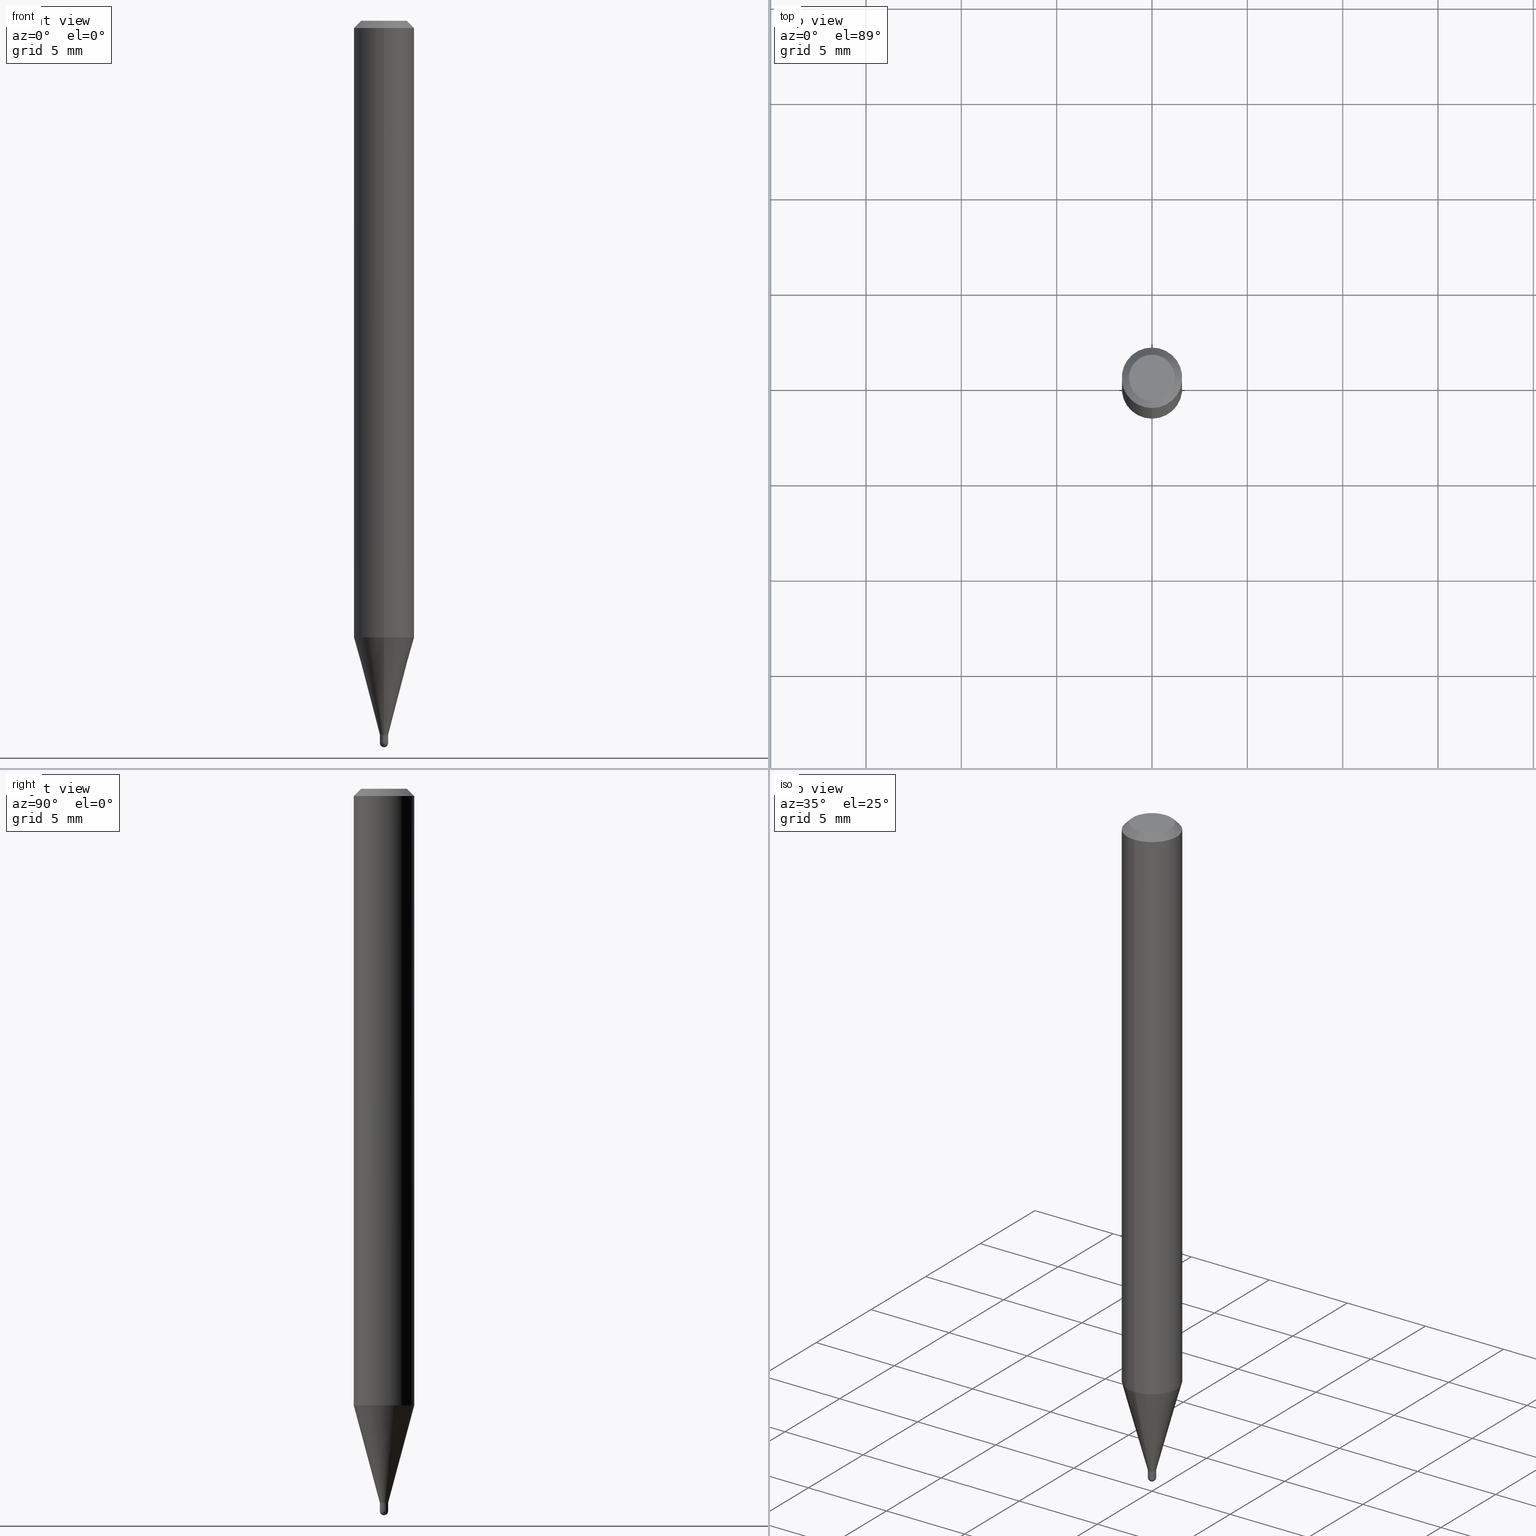
[diagram: canonical four-view strip — front | top / right | iso, engineering-drawing reading convention]
A machine part, canonical four-view strip (front | top / right | iso — engineering-drawing reading convention). The complete STEP part file that produces these views, byte-faithful:
ISO-10303-21;
HEADER;
FILE_DESCRIPTION (( 'STEP AP203' ),
    '1' );
FILE_NAME ('04329.STEP',
    '2024-03-08T18:39:42',
    ( '' ),
    ( '' ),
    'SwSTEP 2.0',
    'SolidWorks 2023',
    '' );
FILE_SCHEMA (( 'CONFIG_CONTROL_DESIGN' ));
ENDSEC;

DATA;
#1 = ORIENTED_EDGE ( 'NONE', *, *, #239, .T. ) ;
#2 = VERTEX_POINT ( 'NONE', #148 ) ;
#3 = AXIS2_PLACEMENT_3D ( 'NONE', #486, #332, #420 ) ;
#4 = EDGE_CURVE ( 'NONE', #141, #146, #386, .T. ) ;
#5 = ORIENTED_EDGE ( 'NONE', *, *, #302, .T. ) ;
#6 = COORDINATED_UNIVERSAL_TIME_OFFSET ( 5, 0, .BEHIND. ) ;
#7 = CARTESIAN_POINT ( 'NONE',  ( 3.605859241911730090E-29, -5.148167055584161688E-15, -1.474500000000000144 ) ) ;
#8 = VERTEX_POINT ( 'NONE', #30 ) ;
#9 = AXIS2_PLACEMENT_3D ( 'NONE', #336, #100, #499 ) ;
#10 = SECURITY_CLASSIFICATION ( '', '', #47 ) ;
#11 = APPROVAL_ROLE ( '' ) ;
#12 = CARTESIAN_POINT ( 'NONE',  ( 3.668218964304929807E-31, -5.237199446169058048E-17, -0.01500000000000006710 ) ) ;
#13 = ORIENTED_EDGE ( 'NONE', *, *, #500, .T. ) ;
#14 = DATE_AND_TIME ( #455, #452 ) ;
#15 = ORIENTED_EDGE ( 'NONE', *, *, #435, .F. ) ;
#16 = DIRECTION ( 'NONE',  ( -2.445468806185136597E-29, 3.491481338843145583E-15, 1.000000000000000000 ) ) ;
#17 = ORIENTED_EDGE ( 'NONE', *, *, #38, .T. ) ;
#18 = SHAPE_DEFINITION_REPRESENTATION ( #416, #138 ) ;
#19 = AXIS2_PLACEMENT_3D ( 'NONE', #472, #112, #512 ) ;
#20 = VECTOR ( 'NONE', #301, 39.37007874015748854 ) ;
#21 = CARTESIAN_POINT ( 'NONE',  ( -5.586370142145406992E-17, -0.008000000000005148826, -1.474500000000000366 ) ) ;
#22 = ORIENTED_EDGE ( 'NONE', *, *, #470, .T. ) ;
#23 = DIRECTION ( 'NONE',  ( -6.982962677686266711E-15, -1.000000000000000000, 0.000000000000000000 ) ) ;
#24 = CARTESIAN_POINT ( 'NONE',  ( -4.364351673553916201E-16, -0.06250000000000000000, 2.182166435903764727E-16 ) ) ;
#25 = CARTESIAN_POINT ( 'NONE',  ( 4.440892098500625669E-16, 0.06250000000000000000, -2.182166435903764727E-16 ) ) ;
#26 = AXIS2_PLACEMENT_3D ( 'NONE', #338, #258, #347 ) ;
#27 = LINE ( 'NONE', #143, #20 ) ;
#28 = DIRECTION ( 'NONE',  ( -2.445479309536609373E-29, 3.491466297446023562E-15, 1.000000000000000000 ) ) ;
#29 = DIRECTION ( 'NONE',  ( 7.105427357601000281E-15, 1.000000000000000000, 0.000000000000000000 ) ) ;
#30 = CARTESIAN_POINT ( 'NONE',  ( -4.364351673553605587E-16, -0.06250000000000445477, -1.272969256391287551 ) ) ;
#31 = CARTESIAN_POINT ( 'NONE',  ( 3.605859241911730090E-29, -5.148167055584161688E-15, -1.474500000000000144 ) ) ;
#32 = CC_DESIGN_PERSON_AND_ORGANIZATION_ASSIGNMENT ( #246, #173, ( #59 ) ) ;
#33 = ORIENTED_EDGE ( 'NONE', *, *, #38, .F. ) ;
#34 = CARTESIAN_POINT ( 'NONE',  ( 3.113019978181097375E-29, -4.444529256375107421E-15, -1.272969256391287773 ) ) ;
#35 = AXIS2_PLACEMENT_3D ( 'NONE', #351, #133, #422 ) ;
#36 = APPLICATION_CONTEXT ( 'configuration controlled 3d designs of mechanical parts and assemblies' ) ;
#37 = ORIENTED_EDGE ( 'NONE', *, *, #296, .T. ) ;
#38 = EDGE_CURVE ( 'NONE', #488, #2, #497, .T. ) ;
#39 = DIRECTION ( 'NONE',  ( -6.982962677686265922E-15, -1.000000000000000000, 3.491466297446023562E-15 ) ) ;
#40 =( LENGTH_UNIT ( ) NAMED_UNIT ( * ) SI_UNIT ( $, .METRE. ) );
#41 = ADVANCED_FACE ( 'NONE', ( #237 ), #505, .T. ) ;
#42 = DIRECTION ( 'NONE',  ( -2.445479309536609093E-29, 3.491466297446023562E-15, 1.000000000000000000 ) ) ;
#43 = CIRCLE ( 'NONE', #26, 0.008500000000000000611 ) ;
#44 = EDGE_LOOP ( 'NONE', ( #197, #359, #242, #63 ) ) ;
#45 = AXIS2_PLACEMENT_3D ( 'NONE', #95, #259, #97 ) ;
#46 = ADVANCED_FACE ( 'NONE', ( #73 ), #353, .T. ) ;
#47 = SECURITY_CLASSIFICATION_LEVEL ( 'unclassified' ) ;
#48 = CARTESIAN_POINT ( 'NONE',  ( 0.000000000000000000, 0.000000000000000000, 0.000000000000000000 ) ) ;
#49 = AXIS2_PLACEMENT_3D ( 'NONE', #7, #200, #161 ) ;
#50 = VERTEX_POINT ( 'NONE', #227 ) ;
#51 = APPROVAL_DATE_TIME ( #14, #274 ) ;
#52 = ORIENTED_EDGE ( 'NONE', *, *, #296, .F. ) ;
#53 = DATE_TIME_ROLE ( 'creation_date' ) ;
#54 = ADVANCED_FACE ( 'NONE', ( #312 ), #438, .F. ) ;
#55 = DIRECTION ( 'NONE',  ( -2.445479309536609093E-29, 3.491466297446023562E-15, 1.000000000000000000 ) ) ;
#56 = CARTESIAN_POINT ( 'NONE',  ( 3.605859241911730650E-29, -5.148167055584163266E-15, -1.474500000000000366 ) ) ;
#57 = AXIS2_PLACEMENT_3D ( 'NONE', #106, #265, #136 ) ;
#58 = AXIS2_PLACEMENT_3D ( 'NONE', #379, #16, #202 ) ;
#59 = PRODUCT_DEFINITION_FORMATION_WITH_SPECIFIED_SOURCE ( 'ANY', '', #285, .NOT_KNOWN. ) ;
#60 = DIRECTION ( 'NONE',  ( -6.982962677686266711E-15, -1.000000000000000000, 0.000000000000000000 ) ) ;
#61 = CARTESIAN_POINT ( 'NONE',  ( 3.647416724425131194E-29, -5.207544416884551827E-15, -1.491500000000000270 ) ) ;
#62 = DIRECTION ( 'NONE',  ( -6.982962677686265922E-15, -1.000000000000000000, 0.000000000000000000 ) ) ;
#63 = ORIENTED_EDGE ( 'NONE', *, *, #4, .F. ) ;
#64 = CARTESIAN_POINT ( 'NONE',  ( 6.039613253964597870E-17, 0.008499999999995049710, -1.474500000000000144 ) ) ;
#65 = ORIENTED_EDGE ( 'NONE', *, *, #454, .T. ) ;
#66 = CIRCLE ( 'NONE', #3, 0.008000000000000000167 ) ;
#67 = CARTESIAN_POINT ( 'NONE',  ( 3.604636502256962447E-29, -5.146421322435439499E-15, -1.474000000000000199 ) ) ;
#68 = CIRCLE ( 'NONE', #264, 0.008499999999999964181 ) ;
#69 = ADVANCED_FACE ( 'NONE', ( #429 ), #478, .T. ) ;
#70 = LINE ( 'NONE', #391, #130 ) ;
#71 = DIRECTION ( 'NONE',  ( -2.445479309536609093E-29, 3.491466297446023562E-15, 1.000000000000000000 ) ) ;
#72 = FACE_OUTER_BOUND ( 'NONE', #318, .T. ) ;
#73 = FACE_OUTER_BOUND ( 'NONE', #120, .T. ) ;
#74 = CARTESIAN_POINT ( 'NONE',  ( 3.646689833079329078E-29, -5.208585366663827303E-15, -1.491500000000000270 ) ) ;
#75 = FACE_OUTER_BOUND ( 'NONE', #110, .T. ) ;
#76 = ORIENTED_EDGE ( 'NONE', *, *, #335, .T. ) ;
#77 = ORIENTED_EDGE ( 'NONE', *, *, #367, .T. ) ;
#78 = PERSON_AND_ORGANIZATION_ROLE ( 'design_owner' ) ;
#79 = EDGE_CURVE ( 'NONE', #387, #50, #321, .T. ) ;
#80 = VECTOR ( 'NONE', #418, 39.37007874015748143 ) ;
#81 = ADVANCED_FACE ( 'NONE', ( #365 ), #300, .T. ) ;
#82 = ORIENTED_EDGE ( 'NONE', *, *, #236, .F. ) ;
#83 = EDGE_LOOP ( 'NONE', ( #434, #159, #253, #52 ) ) ;
#84 = CALENDAR_DATE ( 2024, 8, 3 ) ;
#85 = AXIS2_PLACEMENT_3D ( 'NONE', #92, #425, #23 ) ;
#86 = CONICAL_SURFACE ( 'NONE', #287, 0.008500000000000198369, 0.2617993877991573459 ) ;
#87 = APPROVAL_ROLE ( '' ) ;
#88 = APPROVAL ( #450, 'UNSPECIFIED' ) ;
#89 = DIRECTION ( 'NONE',  ( 6.982962677686265922E-15, 1.000000000000000000, -3.483106191921935554E-15 ) ) ;
#90 = FACE_OUTER_BOUND ( 'NONE', #83, .T. ) ;
#91 = EDGE_CURVE ( 'NONE', #387, #141, #70, .T. ) ;
#92 = CARTESIAN_POINT ( 'NONE',  ( 3.605859241911730650E-29, -5.148167055584163266E-15, -1.474500000000000366 ) ) ;
#93 = CARTESIAN_POINT ( 'NONE',  ( 3.647416724425131194E-29, -5.207544416884551827E-15, -1.491500000000000270 ) ) ;
#94 = FACE_OUTER_BOUND ( 'NONE', #479, .T. ) ;
#95 = CARTESIAN_POINT ( 'NONE',  ( 0.000000000000000000, 0.000000000000000000, 0.000000000000000000 ) ) ;
#96 = DIRECTION ( 'NONE',  ( -6.982962677686265922E-15, -1.000000000000000000, 3.491466297446023562E-15 ) ) ;
#97 = DIRECTION ( 'NONE',  ( 1.000000000000000000, -6.982962677686265922E-15, 4.876176775795935232E-29 ) ) ;
#98 = DIRECTION ( 'NONE',  ( -6.982962677686265922E-15, -1.000000000000000000, 0.000000000000000000 ) ) ;
#99 = DIRECTION ( 'NONE',  ( -6.982962677686266711E-15, -1.000000000000000000, 3.491466297446023562E-15 ) ) ;
#100 = DIRECTION ( 'NONE',  ( 1.000000000000000000, -6.982962677686265922E-15, 4.883557194083112340E-29 ) ) ;
#101 = AXIS2_PLACEMENT_3D ( 'NONE', #393, #183, #96 ) ;
#102 = DIRECTION ( 'NONE',  ( -2.445468806185136597E-29, 3.491481338843145583E-15, 1.000000000000000000 ) ) ;
#103 = CARTESIAN_POINT ( 'NONE',  ( 3.667112872259001161E-29, -5.238783432933631391E-15, -1.500000000000000222 ) ) ;
#104 = DIRECTION ( 'NONE',  ( -6.982962677686266711E-15, -1.000000000000000000, 0.000000000000000000 ) ) ;
#105 = DIMENSIONAL_EXPONENTS ( 1.000000000000000000, 0.000000000000000000, 0.000000000000000000, 0.000000000000000000, 0.000000000000000000, 0.000000000000000000, 0.000000000000000000 ) ;
#106 = CARTESIAN_POINT ( 'NONE',  ( 3.605859241911730090E-29, -5.148167055584161688E-15, -1.474500000000000144 ) ) ;
#107 = AXIS2_PLACEMENT_3D ( 'NONE', #193, #398, #39 ) ;
#108 = EDGE_CURVE ( 'NONE', #485, #502, #436, .T. ) ;
#109 = CIRCLE ( 'NONE', #491, 0.008500000000000198369 ) ;
#110 = EDGE_LOOP ( 'NONE', ( #76, #362 ) ) ;
#111 = CARTESIAN_POINT ( 'NONE',  ( 0.000000000000000000, 0.000000000000000000, 0.000000000000000000 ) ) ;
#112 = DIRECTION ( 'NONE',  ( 1.000000000000000000, -6.982962677686265922E-15, 4.883557194083112340E-29 ) ) ;
#113 = APPLICATION_PROTOCOL_DEFINITION ( 'international standard', 'config_control_design', 1994, #117 ) ;
#114 = EDGE_LOOP ( 'NONE', ( #156, #166, #77, #17 ) ) ;
#115 = VERTEX_POINT ( 'NONE', #431 ) ;
#116 = CC_DESIGN_PERSON_AND_ORGANIZATION_ASSIGNMENT ( #234, #310, ( #192 ) ) ;
#117 = APPLICATION_CONTEXT ( 'configuration controlled 3d designs of mechanical parts and assemblies' ) ;
#118 = ORIENTED_EDGE ( 'NONE', *, *, #369, .T. ) ;
#119 = LOCAL_TIME ( 13, 39, 42.00000000000000000, #210 ) ;
#120 = EDGE_LOOP ( 'NONE', ( #185, #164, #15, #405 ) ) ;
#121 = ADVANCED_FACE ( 'NONE', ( #75 ), #232, .F. ) ;
#122 = ORIENTED_EDGE ( 'NONE', *, *, #281, .T. ) ;
#123 = EDGE_LOOP ( 'NONE', ( #510, #65, #129, #33 ) ) ;
#124 = EDGE_CURVE ( 'NONE', #271, #374, #214, .T. ) ;
#125 = CIRCLE ( 'NONE', #484, 0.008500000000000000611 ) ;
#126 = CARTESIAN_POINT ( 'NONE',  ( -3.773273898774340269E-16, -0.04749999999999999362, 1.003437006099265876E-16 ) ) ;
#127 = FACE_OUTER_BOUND ( 'NONE', #177, .T. ) ;
#128 = DIRECTION ( 'NONE',  ( 1.000000000000000000, -6.982962677686274599E-15, 0.000000000000000000 ) ) ;
#129 = ORIENTED_EDGE ( 'NONE', *, *, #403, .T. ) ;
#130 = VECTOR ( 'NONE', #305, 39.37007874015748143 ) ;
#131 = AXIS2_PLACEMENT_3D ( 'NONE', #34, #184, #228 ) ;
#132 = CYLINDRICAL_SURFACE ( 'NONE', #45, 0.008500000000000002345 ) ;
#133 = DIRECTION ( 'NONE',  ( -2.445479309536609093E-29, 3.491466297446023562E-15, 1.000000000000000000 ) ) ;
#134 = LINE ( 'NONE', #319, #469 ) ;
#135 = ORIENTED_EDGE ( 'NONE', *, *, #435, .T. ) ;
#136 = DIRECTION ( 'NONE',  ( -6.982962677686265922E-15, -1.000000000000000000, 0.000000000000000000 ) ) ;
#137 = DIRECTION ( 'NONE',  ( -6.982962677686265922E-15, -1.000000000000000000, 0.000000000000000000 ) ) ;
#138 = ADVANCED_BREP_SHAPE_REPRESENTATION ( '04329', ( #482, #307, #396 ), #388 ) ;
#139 = CARTESIAN_POINT ( 'NONE',  ( -5.935518276029879037E-17, -0.008500000000005373049, -1.474000000000000199 ) ) ;
#140 = EDGE_CURVE ( 'NONE', #50, #387, #66, .T. ) ;
#141 = VERTEX_POINT ( 'NONE', #255 ) ;
#142 = DIRECTION ( 'NONE',  ( 1.000000000000000000, -6.982962677686265922E-15, 4.876176775795935232E-29 ) ) ;
#143 = CARTESIAN_POINT ( 'NONE',  ( -5.935518276029858083E-17, -0.008500000000005345294, -1.474500000000000144 ) ) ;
#144 = APPROVAL_PERSON_ORGANIZATION ( #352, #330, #157 ) ;
#145 = ORIENTED_EDGE ( 'NONE', *, *, #369, .F. ) ;
#146 = VERTEX_POINT ( 'NONE', #139 ) ;
#147 = CC_DESIGN_PERSON_AND_ORGANIZATION_ASSIGNMENT ( #276, #78, ( #285 ) ) ;
#148 = CARTESIAN_POINT ( 'NONE',  ( -4.364351673553912750E-16, -0.06250000000000005551, -0.01499999999999984852 ) ) ;
#149 = DIRECTION ( 'NONE',  ( -2.445468806185136877E-29, 3.491481338843145188E-15, 1.000000000000000000 ) ) ;
#150 = VERTEX_POINT ( 'NONE', #218 ) ;
#151 = ORIENTED_EDGE ( 'NONE', *, *, #414, .T. ) ;
#152 = AXIS2_PLACEMENT_3D ( 'NONE', #273, #42, #104 ) ;
#153 = CC_DESIGN_APPROVAL ( #88, ( #59 ) ) ;
#154 = DIRECTION ( 'NONE',  ( 1.000000000000000000, 0.000000000000000000, 0.000000000000000000 ) ) ;
#155 = ADVANCED_FACE ( 'NONE', ( #176 ), #182, .T. ) ;
#156 = ORIENTED_EDGE ( 'NONE', *, *, #493, .F. ) ;
#157 = APPROVAL_ROLE ( '' ) ;
#158 = APPROVAL_DATE_TIME ( #370, #330 ) ;
#159 = ORIENTED_EDGE ( 'NONE', *, *, #428, .T. ) ;
#160 = CC_DESIGN_SECURITY_CLASSIFICATION ( #10, ( #59 ) ) ;
#161 = DIRECTION ( 'NONE',  ( -6.982962677686265922E-15, -1.000000000000000000, 0.000000000000000000 ) ) ;
#162 = PERSON_AND_ORGANIZATION_ROLE ( 'classification_officer' ) ;
#163 = DIRECTION ( 'NONE',  ( -2.445479309536609093E-29, 3.491466297446023562E-15, 1.000000000000000000 ) ) ;
#164 = ORIENTED_EDGE ( 'NONE', *, *, #463, .T. ) ;
#165 = ADVANCED_FACE ( 'NONE', ( #298 ), #423, .T. ) ;
#166 = ORIENTED_EDGE ( 'NONE', *, *, #337, .F. ) ;
#167 = VECTOR ( 'NONE', #376, 39.37007874015748143 ) ;
#168 = AXIS2_PLACEMENT_3D ( 'NONE', #12, #163, #487 ) ;
#169 = CALENDAR_DATE ( 2024, 8, 3 ) ;
#170 = DIRECTION ( 'NONE',  ( -2.445479309536609093E-29, 3.491466297446023562E-15, 1.000000000000000000 ) ) ;
#171 = ORIENTED_EDGE ( 'NONE', *, *, #361, .T. ) ;
#172 = ADVANCED_FACE ( 'NONE', ( #461 ), #384, .F. ) ;
#173 = PERSON_AND_ORGANIZATION_ROLE ( 'creator' ) ;
#174 = DIRECTION ( 'NONE',  ( -2.445468806185136597E-29, 3.491481338843145583E-15, 1.000000000000000000 ) ) ;
#175 = CARTESIAN_POINT ( 'NONE',  ( 3.668218964304929807E-31, -5.237199446169058048E-17, -0.01500000000000006710 ) ) ;
#176 = FACE_OUTER_BOUND ( 'NONE', #327, .T. ) ;
#177 = EDGE_LOOP ( 'NONE', ( #290, #334, #171, #275 ) ) ;
#178 = AXIS2_PLACEMENT_3D ( 'NONE', #233, #189, #98 ) ;
#179 = VECTOR ( 'NONE', #299, 39.37007874015748143 ) ;
#180 = CARTESIAN_POINT ( 'NONE',  ( -5.935518276029858083E-17, -0.008500000000005345294, -1.474500000000000144 ) ) ;
#181 = FACE_OUTER_BOUND ( 'NONE', #114, .T. ) ;
#182 = SPHERICAL_SURFACE ( 'NONE', #9, 0.008499999999999964181 ) ;
#183 = DIRECTION ( 'NONE',  ( -2.445479309536608532E-29, 3.491466297446023562E-15, 1.000000000000000000 ) ) ;
#184 = DIRECTION ( 'NONE',  ( -2.445479309536609093E-29, 3.491466297446023562E-15, 1.000000000000000000 ) ) ;
#185 = ORIENTED_EDGE ( 'NONE', *, *, #124, .T. ) ;
#186 = FACE_OUTER_BOUND ( 'NONE', #440, .T. ) ;
#187 = APPLICATION_PROTOCOL_DEFINITION ( 'international standard', 'config_control_design', 1994, #36 ) ;
#188 = CIRCLE ( 'NONE', #483, 0.008500000000000198369 ) ;
#189 = DIRECTION ( 'NONE',  ( -2.445479309536609093E-29, 3.491466297446023562E-15, 1.000000000000000000 ) ) ;
#190 = CONICAL_SURFACE ( 'NONE', #247, 0.008000000000000000167, 0.7853981633974739252 ) ;
#191 = DIRECTION ( 'NONE',  ( -1.000000000000000000, 6.982962677686265922E-15, -4.883557194083112340E-29 ) ) ;
#192 = PRODUCT_DEFINITION ( 'UNKNOWN', '', #59, #343 ) ;
#193 = CARTESIAN_POINT ( 'NONE',  ( 0.000000000000000000, 0.000000000000000000, 0.000000000000000000 ) ) ;
#194 = CARTESIAN_POINT ( 'NONE',  ( 0.000000000000000000, 0.000000000000000000, 0.000000000000000000 ) ) ;
#195 = AXIS2_PLACEMENT_3D ( 'NONE', #257, #220, #89 ) ;
#196 = AXIS2_PLACEMENT_3D ( 'NONE', #339, #191, #62 ) ;
#197 = ORIENTED_EDGE ( 'NONE', *, *, #91, .F. ) ;
#198 = CC_DESIGN_PERSON_AND_ORGANIZATION_ASSIGNMENT ( #378, #292, ( #59 ) ) ;
#199 = CALENDAR_DATE ( 2024, 8, 3 ) ;
#200 = DIRECTION ( 'NONE',  ( -2.445479309536609093E-29, 3.491466297446023562E-15, 1.000000000000000000 ) ) ;
#201 = DATE_AND_TIME ( #169, #225 ) ;
#202 = DIRECTION ( 'NONE',  ( 1.000000000000000000, -6.982962677686273021E-15, 0.000000000000000000 ) ) ;
#203 = EDGE_LOOP ( 'NONE', ( #250, #277, #37, #346 ) ) ;
#204 = AXIS2_PLACEMENT_3D ( 'NONE', #442, #248, #401 ) ;
#205 = CIRCLE ( 'NONE', #196, 0.008499999999999964181 ) ;
#206 = PERSON_AND_ORGANIZATION ( #395, #240 ) ;
#207 = ORIENTED_EDGE ( 'NONE', *, *, #281, .F. ) ;
#208 = APPROVAL_STATUS ( 'not_yet_approved' ) ;
#209 = EDGE_LOOP ( 'NONE', ( #360, #504, #377, #308 ) ) ;
#210 = COORDINATED_UNIVERSAL_TIME_OFFSET ( 5, 0, .BEHIND. ) ;
#211 = DIRECTION ( 'NONE',  ( -6.982962677686265922E-15, -1.000000000000000000, 0.000000000000000000 ) ) ;
#212 = ADVANCED_FACE ( 'NONE', ( #127 ), #223, .T. ) ;
#213 = LINE ( 'NONE', #21, #278 ) ;
#214 = CIRCLE ( 'NONE', #49, 0.008500000000000198369 ) ;
#215 = AXIS2_PLACEMENT_3D ( 'NONE', #226, #467, #99 ) ;
#216 = DIRECTION ( 'NONE',  ( 6.982962677686265922E-15, 1.000000000000000000, -3.491466297446023562E-15 ) ) ;
#217 = CARTESIAN_POINT ( 'NONE',  ( 2.522426711948700069E-16, 0.008499999999995049710, -1.474500000000000144 ) ) ;
#218 = CARTESIAN_POINT ( 'NONE',  ( 0.008500000000000000611, -5.207544416884551827E-15, -1.474500000000000144 ) ) ;
#219 = EDGE_CURVE ( 'NONE', #115, #488, #460, .T. ) ;
#220 = DIRECTION ( 'NONE',  ( 2.445479309536609093E-29, -3.491466297446023562E-15, -1.000000000000000000 ) ) ;
#221 = LINE ( 'NONE', #385, #179 ) ;
#222 = ORIENTED_EDGE ( 'NONE', *, *, #465, .F. ) ;
#223 = CONICAL_SURFACE ( 'NONE', #195, 0.06250000000000000000, 0.7853981633974483900 ) ;
#224 = EDGE_CURVE ( 'NONE', #374, #271, #188, .T. ) ;
#225 = LOCAL_TIME ( 13, 39, 42.00000000000000000, #410 ) ;
#226 = CARTESIAN_POINT ( 'NONE',  ( 1.601812143576489830E-45, -2.286943542039958583E-31, -6.550094851875950792E-17 ) ) ;
#227 = CARTESIAN_POINT ( 'NONE',  ( -5.586370142145406992E-17, -0.008000000000005148826, -1.474500000000000366 ) ) ;
#228 = DIRECTION ( 'NONE',  ( -6.982962677686265922E-15, -1.000000000000000000, 4.370956789862821150E-15 ) ) ;
#229 = PLANE ( 'NONE',  #101 ) ;
#230 = DIRECTION ( 'NONE',  ( -2.445468806185136597E-29, 3.491481338843145583E-15, 1.000000000000000000 ) ) ;
#231 = LINE ( 'NONE', #345, #342 ) ;
#232 = PLANE ( 'NONE',  #204 ) ;
#233 = CARTESIAN_POINT ( 'NONE',  ( 3.604636502256962447E-29, -5.146421322435439499E-15, -1.474000000000000199 ) ) ;
#234 = PERSON_AND_ORGANIZATION ( #395, #240 ) ;
#235 = APPROVAL_STATUS ( 'not_yet_approved' ) ;
#236 = EDGE_CURVE ( 'NONE', #444, #284, #411, .T. ) ;
#237 = FACE_OUTER_BOUND ( 'NONE', #123, .T. ) ;
#238 = CARTESIAN_POINT ( 'NONE',  ( 0.000000000000000000, 0.000000000000000000, 0.000000000000000000 ) ) ;
#239 = EDGE_CURVE ( 'NONE', #502, #444, #475, .T. ) ;
#240 = ORGANIZATION ( 'UNSPECIFIED', 'UNSPECIFIED', '' ) ;
#241 = ORIENTED_EDGE ( 'NONE', *, *, #414, .F. ) ;
#242 = ORIENTED_EDGE ( 'NONE', *, *, #314, .T. ) ;
#243 = ORIENTED_EDGE ( 'NONE', *, *, #361, .F. ) ;
#244 = CARTESIAN_POINT ( 'NONE',  ( 0.008500000000000002345, -5.237222008264718177E-15, -1.491500000000000270 ) ) ;
#245 = ORIENTED_EDGE ( 'NONE', *, *, #239, .F. ) ;
#246 = PERSON_AND_ORGANIZATION ( #395, #240 ) ;
#247 = AXIS2_PLACEMENT_3D ( 'NONE', #56, #170, #60 ) ;
#248 = DIRECTION ( 'NONE',  ( 2.438088387897960049E-29, -3.491481338843145188E-15, -1.000000000000000000 ) ) ;
#249 = PERSON_AND_ORGANIZATION ( #395, #240 ) ;
#250 = ORIENTED_EDGE ( 'NONE', *, *, #428, .F. ) ;
#251 = ADVANCED_FACE ( 'NONE', ( #94 ), #311, .T. ) ;
#252 = FACE_OUTER_BOUND ( 'NONE', #44, .T. ) ;
#253 = ORIENTED_EDGE ( 'NONE', *, *, #4, .T. ) ;
#254 = CARTESIAN_POINT ( 'NONE',  ( 0.008500000000000002345, -5.935518276033327838E-17, 4.144750259426545879E-31 ) ) ;
#255 = CARTESIAN_POINT ( 'NONE',  ( 6.039613253964576916E-17, 0.008499999999995023689, -1.474000000000000199 ) ) ;
#256 = CONICAL_SURFACE ( 'NONE', #354, 0.06250000000000000000, 0.7853981633974483900 ) ;
#257 = CARTESIAN_POINT ( 'NONE',  ( 3.668218964304929807E-31, -5.237199446169058048E-17, -0.01500000000000006710 ) ) ;
#258 = DIRECTION ( 'NONE',  ( -2.445468806185136597E-29, 3.491481338843145583E-15, 1.000000000000000000 ) ) ;
#259 = DIRECTION ( 'NONE',  ( -2.445468806185136597E-29, 3.491481338843145583E-15, 1.000000000000000000 ) ) ;
#260 = EDGE_CURVE ( 'NONE', #448, #150, #43, .T. ) ;
#261 = CARTESIAN_POINT ( 'NONE',  ( 3.316907271900976096E-16, 0.04749999999999999362, -1.985951233880658618E-16 ) ) ;
#262 = DIRECTION ( 'NONE',  ( 1.839019923739648830E-15, 0.2588190451025317862, 0.9659258262890653146 ) ) ;
#263 = AXIS2_PLACEMENT_3D ( 'NONE', #194, #473, #400 ) ;
#264 = AXIS2_PLACEMENT_3D ( 'NONE', #74, #501, #29 ) ;
#265 = DIRECTION ( 'NONE',  ( -2.445479309536609093E-29, 3.491466297446023562E-15, 1.000000000000000000 ) ) ;
#266 = CARTESIAN_POINT ( 'NONE',  ( -5.935518276029667030E-17, -0.008500000000005190903, -1.491500000000000270 ) ) ;
#267 = CC_DESIGN_PERSON_AND_ORGANIZATION_ASSIGNMENT ( #249, #162, ( #10 ) ) ;
#268 = DIRECTION ( 'NONE',  ( 1.000000000000000000, -6.982962677686273021E-15, 0.000000000000000000 ) ) ;
#269 = DIRECTION ( 'NONE',  ( -2.445479309536609093E-29, 3.491466297446023562E-15, 1.000000000000000000 ) ) ;
#270 = LENGTH_MEASURE_WITH_UNIT ( LENGTH_MEASURE( 0.02539999999999999897 ), #40 );
#271 = VERTEX_POINT ( 'NONE', #180 ) ;
#272 = MECHANICAL_CONTEXT ( 'NONE', #117, 'mechanical' ) ;
#273 = CARTESIAN_POINT ( 'NONE',  ( 3.605859241911730650E-29, -5.148167055584163266E-15, -1.474500000000000366 ) ) ;
#274 = APPROVAL ( #208, 'UNSPECIFIED' ) ;
#275 = ORIENTED_EDGE ( 'NONE', *, *, #367, .F. ) ;
#276 = PERSON_AND_ORGANIZATION ( #395, #240 ) ;
#277 = ORIENTED_EDGE ( 'NONE', *, *, #124, .F. ) ;
#278 = VECTOR ( 'NONE', #492, 39.37007874015748143 ) ;
#279 = CIRCLE ( 'NONE', #58, 0.008500000000000002345 ) ;
#280 = LOCAL_TIME ( 13, 39, 42.00000000000000000, #399 ) ;
#281 = EDGE_CURVE ( 'NONE', #502, #150, #324, .T. ) ;
#282 = ORIENTED_EDGE ( 'NONE', *, *, #236, .T. ) ;
#283 = CARTESIAN_POINT ( 'NONE',  ( -0.008500000000000002345, -5.117470692964776514E-15, -1.491500000000000270 ) ) ;
#284 = VERTEX_POINT ( 'NONE', #283 ) ;
#285 = PRODUCT ( '04329', '04329', '', ( #272 ) ) ;
#286 = VECTOR ( 'NONE', #28, 39.37007874015748143 ) ;
#287 = AXIS2_PLACEMENT_3D ( 'NONE', #31, #71, #137 ) ;
#288 = COORDINATED_UNIVERSAL_TIME_OFFSET ( 5, 0, .BEHIND. ) ;
#289 = CARTESIAN_POINT ( 'NONE',  ( -5.935518276033464656E-17, -0.008500000000000198369, 2.967746352829189039E-17 ) ) ;
#290 = ORIENTED_EDGE ( 'NONE', *, *, #470, .F. ) ;
#291 = ADVANCED_FACE ( 'NONE', ( #90 ), #407, .F. ) ;
#292 = PERSON_AND_ORGANIZATION_ROLE ( 'design_supplier' ) ;
#293 = DIRECTION ( 'NONE',  ( 1.000000000000000000, -6.982962677686273021E-15, 0.000000000000000000 ) ) ;
#294 = AXIS2_PLACEMENT_3D ( 'NONE', #397, #269, #466 ) ;
#295 = APPROVAL_PERSON_ORGANIZATION ( #206, #274, #11 ) ;
#296 = EDGE_CURVE ( 'NONE', #271, #146, #328, .T. ) ;
#297 = DIRECTION ( 'NONE',  ( 4.937700262164548042E-15, 0.7071067811865451302, -0.7071067811865499042 ) ) ;
#298 = FACE_OUTER_BOUND ( 'NONE', #417, .T. ) ;
#299 = DIRECTION ( 'NONE',  ( -4.851104656540964275E-15, -0.7071067811865500152, -0.7071067811865450192 ) ) ;
#300 = CYLINDRICAL_SURFACE ( 'NONE', #294, 0.06250000000000000000 ) ;
#301 = DIRECTION ( 'NONE',  ( -1.807323732225377865E-15, -0.2588190451025250138, 0.9659258262890670910 ) ) ;
#302 = EDGE_CURVE ( 'NONE', #284, #485, #279, .T. ) ;
#303 = AXIS2_PLACEMENT_3D ( 'NONE', #93, #462, #456 ) ;
#304 = AXIS2_PLACEMENT_3D ( 'NONE', #457, #445, #373 ) ;
#305 = DIRECTION ( 'NONE',  ( 5.024295867788190974E-15, 0.7071067811865681119, 0.7071067811865270336 ) ) ;
#306 = CARTESIAN_POINT ( 'NONE',  ( 6.039613253964484472E-17, 0.008499999999994775624, -1.491500000000000270 ) ) ;
#307 = MANIFOLD_SOLID_BREP ( 'Body-Move/Copy2[2]', #490 ) ;
#308 = ORIENTED_EDGE ( 'NONE', *, *, #454, .F. ) ;
#309 = ORIENTED_EDGE ( 'NONE', *, *, #140, .F. ) ;
#310 = PERSON_AND_ORGANIZATION_ROLE ( 'creator' ) ;
#311 = CONICAL_SURFACE ( 'NONE', #85, 0.008000000000000000167, 0.7853981633974739252 ) ;
#312 = FACE_OUTER_BOUND ( 'NONE', #203, .T. ) ;
#313 = CALENDAR_DATE ( 2024, 8, 3 ) ;
#314 = EDGE_CURVE ( 'NONE', #50, #146, #213, .T. ) ;
#315 =( CONVERSION_BASED_UNIT ( 'INCH', #270 ) LENGTH_UNIT ( ) NAMED_UNIT ( #105 ) );
#316 = DATE_AND_TIME ( #313, #280 ) ;
#317 = DIRECTION ( 'NONE',  ( 0.000000000000000000, 0.000000000000000000, 1.000000000000000000 ) ) ;
#318 = EDGE_LOOP ( 'NONE', ( #309, #481 ) ) ;
#319 = CARTESIAN_POINT ( 'NONE',  ( -0.008500000000000002345, 6.039613253960853246E-17, -4.181094826716670944E-31 ) ) ;
#320 = VERTEX_POINT ( 'NONE', #126 ) ;
#321 = CIRCLE ( 'NONE', #152, 0.008000000000000000167 ) ;
#322 = CC_DESIGN_APPROVAL ( #274, ( #10 ) ) ;
#323 = DATE_AND_TIME ( #84, #119 ) ;
#324 = LINE ( 'NONE', #254, #167 ) ;
#325 = ADVANCED_FACE ( 'NONE', ( #252 ), #190, .T. ) ;
#326 = DIRECTION ( 'NONE',  ( -2.445479309536609093E-29, 3.491466297446023562E-15, 1.000000000000000000 ) ) ;
#327 = EDGE_LOOP ( 'NONE', ( #145, #151, #245, #511 ) ) ;
#328 = LINE ( 'NONE', #289, #80 ) ;
#329 = VERTEX_POINT ( 'NONE', #333 ) ;
#330 = APPROVAL ( #235, 'UNSPECIFIED' ) ;
#331 = CIRCLE ( 'NONE', #215, 0.04749999999999999362 ) ;
#332 = DIRECTION ( 'NONE',  ( -2.445479309536609093E-29, 3.491466297446023562E-15, 1.000000000000000000 ) ) ;
#333 = CARTESIAN_POINT ( 'NONE',  ( 3.840629472727447874E-16, 0.04749999999999999362, -2.313455976474456528E-16 ) ) ;
#334 = ORIENTED_EDGE ( 'NONE', *, *, #493, .T. ) ;
#335 = EDGE_CURVE ( 'NONE', #150, #448, #125, .T. ) ;
#336 = CARTESIAN_POINT ( 'NONE',  ( 3.646689833079329078E-29, -5.208585366663827303E-15, -1.491500000000000270 ) ) ;
#337 = EDGE_CURVE ( 'NONE', #329, #320, #477, .T. ) ;
#338 = CARTESIAN_POINT ( 'NONE',  ( 3.605843754719984351E-29, -5.148189234124218339E-15, -1.474500000000000144 ) ) ;
#339 = CARTESIAN_POINT ( 'NONE',  ( 3.646689833079329078E-29, -5.208585366663827303E-15, -1.491500000000000270 ) ) ;
#340 = AXIS2_PLACEMENT_3D ( 'NONE', #261, #344, #216 ) ;
#341 = ORIENTED_EDGE ( 'NONE', *, *, #403, .F. ) ;
#342 = VECTOR ( 'NONE', #498, 39.37007874015748143 ) ;
#343 = DESIGN_CONTEXT ( 'detailed design', #36, 'design' ) ;
#344 = DIRECTION ( 'NONE',  ( 2.445479309536608532E-29, -3.491466297446023562E-15, -1.000000000000000000 ) ) ;
#345 = CARTESIAN_POINT ( 'NONE',  ( 6.039613253960991297E-17, 0.008500000000000198369, -2.967746352829189039E-17 ) ) ;
#346 = ORIENTED_EDGE ( 'NONE', *, *, #465, .T. ) ;
#347 = DIRECTION ( 'NONE',  ( 1.000000000000000000, -6.982962677686274599E-15, 0.000000000000000000 ) ) ;
#348 = FACE_OUTER_BOUND ( 'NONE', #209, .T. ) ;
#349 = ORIENTED_EDGE ( 'NONE', *, *, #260, .F. ) ;
#350 = DIRECTION ( 'NONE',  ( -6.982962677686265922E-15, -1.000000000000000000, 3.483106191921935554E-15 ) ) ;
#351 = CARTESIAN_POINT ( 'NONE',  ( 3.113019978181097375E-29, -4.444529256375107421E-15, -1.272969256391287773 ) ) ;
#352 = PERSON_AND_ORGANIZATION ( #395, #240 ) ;
#353 = CONICAL_SURFACE ( 'NONE', #57, 0.008500000000000198369, 0.2617993877991573459 ) ;
#354 = AXIS2_PLACEMENT_3D ( 'NONE', #175, #394, #426 ) ;
#355 = APPROVAL_PERSON_ORGANIZATION ( #458, #88, #87 ) ;
#356 = CARTESIAN_POINT ( 'NONE',  ( 3.668218964304929807E-31, -5.237199446169058048E-17, -0.01500000000000006710 ) ) ;
#357 = CARTESIAN_POINT ( 'NONE',  ( -0.008500000000000000611, -5.117470692964776514E-15, -1.474500000000000144 ) ) ;
#358 =( NAMED_UNIT ( * ) PLANE_ANGLE_UNIT ( ) SI_UNIT ( $, .RADIAN. ) );
#359 = ORIENTED_EDGE ( 'NONE', *, *, #79, .T. ) ;
#360 = ORIENTED_EDGE ( 'NONE', *, *, #463, .F. ) ;
#361 = EDGE_CURVE ( 'NONE', #2, #488, #427, .T. ) ;
#362 = ORIENTED_EDGE ( 'NONE', *, *, #260, .T. ) ;
#363 =( NAMED_UNIT ( * ) SI_UNIT ( $, .STERADIAN. ) SOLID_ANGLE_UNIT ( ) );
#364 = AXIS2_PLACEMENT_3D ( 'NONE', #61, #381, #293 ) ;
#365 = FACE_OUTER_BOUND ( 'NONE', #453, .T. ) ;
#366 = CIRCLE ( 'NONE', #131, 0.06250000000000000000 ) ;
#367 = EDGE_CURVE ( 'NONE', #329, #488, #447, .T. ) ;
#368 = ORIENTED_EDGE ( 'NONE', *, *, #91, .T. ) ;
#369 = EDGE_CURVE ( 'NONE', #380, #485, #205, .T. ) ;
#370 = DATE_AND_TIME ( #199, #437 ) ;
#371 = APPROVAL_DATE_TIME ( #323, #88 ) ;
#372 = AXIS2_PLACEMENT_3D ( 'NONE', #471, #102, #268 ) ;
#373 = DIRECTION ( 'NONE',  ( -6.982962677686266711E-15, -1.000000000000000000, 3.491466297446023562E-15 ) ) ;
#374 = VERTEX_POINT ( 'NONE', #217 ) ;
#375 = CC_DESIGN_DATE_AND_TIME_ASSIGNMENT ( #316, #53, ( #192 ) ) ;
#376 = DIRECTION ( 'NONE',  ( -2.445468806185136877E-29, 3.491481338843145188E-15, 1.000000000000000000 ) ) ;
#377 = ORIENTED_EDGE ( 'NONE', *, *, #424, .T. ) ;
#378 = PERSON_AND_ORGANIZATION ( #395, #240 ) ;
#379 = CARTESIAN_POINT ( 'NONE',  ( 3.647416724425131194E-29, -5.207544416884551827E-15, -1.491500000000000270 ) ) ;
#380 = VERTEX_POINT ( 'NONE', #103 ) ;
#381 = DIRECTION ( 'NONE',  ( -2.445468806185136597E-29, 3.491481338843145583E-15, 1.000000000000000000 ) ) ;
#382 = CARTESIAN_POINT ( 'NONE',  ( 5.861977570024502408E-17, 0.007999999999994853242, -1.474500000000000366 ) ) ;
#383 = ORIENTED_EDGE ( 'NONE', *, *, #219, .T. ) ;
#384 = PLANE ( 'NONE',  #340 ) ;
#385 = CARTESIAN_POINT ( 'NONE',  ( -4.287811248607203282E-16, -0.06250000000000005551, -0.01499999999999984852 ) ) ;
#386 = CIRCLE ( 'NONE', #178, 0.008500000000000198369 ) ;
#387 = VERTEX_POINT ( 'NONE', #382 ) ;
#388 =( GEOMETRIC_REPRESENTATION_CONTEXT ( 3 ) GLOBAL_UNCERTAINTY_ASSIGNED_CONTEXT ( ( #459 ) ) GLOBAL_UNIT_ASSIGNED_CONTEXT ( ( #315, #358, #363 ) ) REPRESENTATION_CONTEXT ( 'NONE', 'WORKASPACE' ) );
#389 = DIRECTION ( 'NONE',  ( -6.982962677686265922E-15, -1.000000000000000000, 0.000000000000000000 ) ) ;
#390 = EDGE_LOOP ( 'NONE', ( #406, #5, #408, #122, #349 ) ) ;
#391 = CARTESIAN_POINT ( 'NONE',  ( 5.684341886084406946E-17, 0.007999999999994853242, -1.474500000000000366 ) ) ;
#392 = CARTESIAN_POINT ( 'NONE',  ( 4.440892098500938748E-16, 0.06249999999999995143, -0.01500000000000028394 ) ) ;
#393 = CARTESIAN_POINT ( 'NONE',  ( 3.605859241911730650E-29, -5.148167055584163266E-15, -1.474500000000000366 ) ) ;
#394 = DIRECTION ( 'NONE',  ( 2.445479309536609093E-29, -3.491466297446023562E-15, -1.000000000000000000 ) ) ;
#395 = PERSON ( 'UNSPECIFIED', 'UNSPECIFIED', 'UNSPECIFIED', ('UNSPECIFIED'), ('UNSPECIFIED'), ('UNSPECIFIED') ) ;
#396 = AXIS2_PLACEMENT_3D ( 'NONE', #238, #317, #154 ) ;
#397 = CARTESIAN_POINT ( 'NONE',  ( 0.000000000000000000, 0.000000000000000000, 0.000000000000000000 ) ) ;
#398 = DIRECTION ( 'NONE',  ( -2.445479309536609093E-29, 3.491466297446023562E-15, 1.000000000000000000 ) ) ;
#399 = COORDINATED_UNIVERSAL_TIME_OFFSET ( 5, 0, .BEHIND. ) ;
#400 = DIRECTION ( 'NONE',  ( -6.982962677686265922E-15, -1.000000000000000000, 3.491466297446023168E-15 ) ) ;
#401 = DIRECTION ( 'NONE',  ( -1.000000000000000000, 6.982962677686265922E-15, -4.876176775795935793E-29 ) ) ;
#402 = VECTOR ( 'NONE', #433, 39.37007874015748143 ) ;
#403 = EDGE_CURVE ( 'NONE', #8, #2, #503, .T. ) ;
#404 = ORIENTED_EDGE ( 'NONE', *, *, #314, .F. ) ;
#405 = ORIENTED_EDGE ( 'NONE', *, *, #424, .F. ) ;
#406 = ORIENTED_EDGE ( 'NONE', *, *, #500, .F. ) ;
#407 = CYLINDRICAL_SURFACE ( 'NONE', #507, 0.008500000000000198369 ) ;
#408 = ORIENTED_EDGE ( 'NONE', *, *, #108, .T. ) ;
#409 = ADVANCED_FACE ( 'NONE', ( #181 ), #256, .T. ) ;
#410 = COORDINATED_UNIVERSAL_TIME_OFFSET ( 5, 0, .BEHIND. ) ;
#411 = CIRCLE ( 'NONE', #364, 0.008500000000000002345 ) ;
#412 = VECTOR ( 'NONE', #262, 39.37007874015748143 ) ;
#413 = ORIENTED_EDGE ( 'NONE', *, *, #335, .F. ) ;
#414 = EDGE_CURVE ( 'NONE', #380, #444, #68, .T. ) ;
#415 = DATE_TIME_ROLE ( 'classification_date' ) ;
#416 = PRODUCT_DEFINITION_SHAPE ( 'NONE', 'NONE',  #192 ) ;
#417 = EDGE_LOOP ( 'NONE', ( #241, #118, #446, #82 ) ) ;
#418 = DIRECTION ( 'NONE',  ( -2.445479309536609373E-29, 3.491466297446023562E-15, 1.000000000000000000 ) ) ;
#419 = CIRCLE ( 'NONE', #35, 0.06250000000000000000 ) ;
#420 = DIRECTION ( 'NONE',  ( -6.982962677686266711E-15, -1.000000000000000000, 0.000000000000000000 ) ) ;
#421 = ORIENTED_EDGE ( 'NONE', *, *, #337, .T. ) ;
#422 = DIRECTION ( 'NONE',  ( -6.982962677686265922E-15, -1.000000000000000000, 4.370956789862821150E-15 ) ) ;
#423 = SPHERICAL_SURFACE ( 'NONE', #19, 0.008499999999999964181 ) ;
#424 = EDGE_CURVE ( 'NONE', #271, #8, #27, .T. ) ;
#425 = DIRECTION ( 'NONE',  ( -2.445479309536609093E-29, 3.491466297446023562E-15, 1.000000000000000000 ) ) ;
#426 = DIRECTION ( 'NONE',  ( 6.982962677686265922E-15, 1.000000000000000000, -3.483106191921935554E-15 ) ) ;
#427 = CIRCLE ( 'NONE', #168, 0.06250000000000000000 ) ;
#428 = EDGE_CURVE ( 'NONE', #374, #141, #231, .T. ) ;
#429 = FACE_OUTER_BOUND ( 'NONE', #390, .T. ) ;
#430 = LINE ( 'NONE', #64, #412 ) ;
#431 = CARTESIAN_POINT ( 'NONE',  ( 4.440892098500935790E-16, 0.06249999999999554523, -1.272969256391287995 ) ) ;
#432 = ADVANCED_FACE ( 'NONE', ( #348 ), #86, .T. ) ;
#433 = DIRECTION ( 'NONE',  ( -2.445479309536609373E-29, 3.491466297446023562E-15, 1.000000000000000000 ) ) ;
#434 = ORIENTED_EDGE ( 'NONE', *, *, #224, .F. ) ;
#435 = EDGE_CURVE ( 'NONE', #8, #115, #366, .T. ) ;
#436 = CIRCLE ( 'NONE', #372, 0.008500000000000002345 ) ;
#437 = LOCAL_TIME ( 13, 39, 42.00000000000000000, #6 ) ;
#438 = CYLINDRICAL_SURFACE ( 'NONE', #263, 0.008500000000000198369 ) ;
#439 = EDGE_LOOP ( 'NONE', ( #421, #22 ) ) ;
#440 = EDGE_LOOP ( 'NONE', ( #282, #13, #413, #207, #1 ) ) ;
#441 = AXIS2_PLACEMENT_3D ( 'NONE', #111, #230, #142 ) ;
#442 = CARTESIAN_POINT ( 'NONE',  ( 5.935518276036933179E-17, 0.008499999999994853686, -1.474500000000000144 ) ) ;
#443 = VECTOR ( 'NONE', #297, 39.37007874015748143 ) ;
#444 = VERTEX_POINT ( 'NONE', #306 ) ;
#445 = DIRECTION ( 'NONE',  ( -2.445479309536609093E-29, 3.491466297446023562E-15, 1.000000000000000000 ) ) ;
#446 = ORIENTED_EDGE ( 'NONE', *, *, #302, .F. ) ;
#447 = LINE ( 'NONE', #464, #443 ) ;
#448 = VERTEX_POINT ( 'NONE', #357 ) ;
#449 = ADVANCED_FACE ( 'NONE', ( #186 ), #132, .T. ) ;
#450 = APPROVAL_STATUS ( 'not_yet_approved' ) ;
#451 = CLOSED_SHELL ( 'NONE', ( #449, #155, #121, #165, #69 ) ) ;
#452 = LOCAL_TIME ( 13, 39, 42.00000000000000000, #288 ) ;
#453 = EDGE_LOOP ( 'NONE', ( #135, #383, #243, #341 ) ) ;
#454 = EDGE_CURVE ( 'NONE', #115, #8, #419, .T. ) ;
#455 = CALENDAR_DATE ( 2024, 8, 3 ) ;
#456 = DIRECTION ( 'NONE',  ( 1.000000000000000000, -6.982962677686273021E-15, 0.000000000000000000 ) ) ;
#457 = CARTESIAN_POINT ( 'NONE',  ( 1.601812143576489830E-45, -2.286943542039958583E-31, -6.550094851875950792E-17 ) ) ;
#458 = PERSON_AND_ORGANIZATION ( #395, #240 ) ;
#459 = UNCERTAINTY_MEASURE_WITH_UNIT (LENGTH_MEASURE( 1.000000000000000082E-05 ), #315, 'distance_accuracy_value', 'NONE');
#460 = LINE ( 'NONE', #25, #286 ) ;
#461 = FACE_OUTER_BOUND ( 'NONE', #439, .T. ) ;
#462 = DIRECTION ( 'NONE',  ( -2.445468806185136597E-29, 3.491481338843145583E-15, 1.000000000000000000 ) ) ;
#463 = EDGE_CURVE ( 'NONE', #374, #115, #430, .T. ) ;
#464 = CARTESIAN_POINT ( 'NONE',  ( 4.364351673553919652E-16, 0.06249999999999995143, -0.01500000000000028394 ) ) ;
#465 = EDGE_CURVE ( 'NONE', #146, #141, #109, .T. ) ;
#466 = DIRECTION ( 'NONE',  ( -6.982962677686265922E-15, -1.000000000000000000, 3.491466297446023562E-15 ) ) ;
#467 = DIRECTION ( 'NONE',  ( -2.445479309536609093E-29, 3.491466297446023562E-15, 1.000000000000000000 ) ) ;
#468 = AXIS2_PLACEMENT_3D ( 'NONE', #356, #474, #350 ) ;
#469 = VECTOR ( 'NONE', #149, 39.37007874015748143 ) ;
#470 = EDGE_CURVE ( 'NONE', #320, #329, #331, .T. ) ;
#471 = CARTESIAN_POINT ( 'NONE',  ( 3.647416724425131194E-29, -5.207544416884551827E-15, -1.491500000000000270 ) ) ;
#472 = CARTESIAN_POINT ( 'NONE',  ( 3.646689833079329078E-29, -5.208585366663827303E-15, -1.491500000000000270 ) ) ;
#473 = DIRECTION ( 'NONE',  ( -2.445479309536609093E-29, 3.491466297446023562E-15, 1.000000000000000000 ) ) ;
#474 = DIRECTION ( 'NONE',  ( -2.445479309536609093E-29, 3.491466297446023562E-15, 1.000000000000000000 ) ) ;
#475 = CIRCLE ( 'NONE', #303, 0.008500000000000002345 ) ;
#476 = ORIENTED_EDGE ( 'NONE', *, *, #140, .T. ) ;
#477 = CIRCLE ( 'NONE', #304, 0.04749999999999999362 ) ;
#478 = CYLINDRICAL_SURFACE ( 'NONE', #441, 0.008500000000000002345 ) ;
#479 = EDGE_LOOP ( 'NONE', ( #476, #368, #222, #404 ) ) ;
#480 = CC_DESIGN_DATE_AND_TIME_ASSIGNMENT ( #201, #415, ( #10 ) ) ;
#481 = ORIENTED_EDGE ( 'NONE', *, *, #79, .F. ) ;
#482 = MANIFOLD_SOLID_BREP ( 'Body-Move/Copy2[1]', #451 ) ;
#483 = AXIS2_PLACEMENT_3D ( 'NONE', #496, #55, #211 ) ;
#484 = AXIS2_PLACEMENT_3D ( 'NONE', #494, #174, #128 ) ;
#485 = VERTEX_POINT ( 'NONE', #266 ) ;
#486 = CARTESIAN_POINT ( 'NONE',  ( 3.605859241911730650E-29, -5.148167055584163266E-15, -1.474500000000000366 ) ) ;
#487 = DIRECTION ( 'NONE',  ( -6.982962677686265922E-15, -1.000000000000000000, 3.483106191921935554E-15 ) ) ;
#488 = VERTEX_POINT ( 'NONE', #392 ) ;
#489 = DIRECTION ( 'NONE',  ( -6.982962677686265922E-15, -1.000000000000000000, 3.491466297446023168E-15 ) ) ;
#490 = CLOSED_SHELL ( 'NONE', ( #291, #251, #212, #81, #46, #432, #41, #409, #172, #495, #325, #54 ) ) ;
#491 = AXIS2_PLACEMENT_3D ( 'NONE', #67, #506, #389 ) ;
#492 = DIRECTION ( 'NONE',  ( -4.937700262164674260E-15, -0.7071067811865632269, 0.7071067811865319186 ) ) ;
#493 = EDGE_CURVE ( 'NONE', #320, #2, #221, .T. ) ;
#494 = CARTESIAN_POINT ( 'NONE',  ( 3.605843754719984351E-29, -5.148189234124218339E-15, -1.474500000000000144 ) ) ;
#495 = ADVANCED_FACE ( 'NONE', ( #72 ), #229, .F. ) ;
#496 = CARTESIAN_POINT ( 'NONE',  ( 3.605859241911730090E-29, -5.148167055584161688E-15, -1.474500000000000144 ) ) ;
#497 = CIRCLE ( 'NONE', #468, 0.06250000000000000000 ) ;
#498 = DIRECTION ( 'NONE',  ( -2.445479309536609373E-29, 3.491466297446023562E-15, 1.000000000000000000 ) ) ;
#499 = DIRECTION ( 'NONE',  ( -6.982962677686265922E-15, -1.000000000000000000, 0.000000000000000000 ) ) ;
#500 = EDGE_CURVE ( 'NONE', #284, #448, #134, .T. ) ;
#501 = DIRECTION ( 'NONE',  ( 1.000000000000000000, -7.105427357601001070E-15, 4.926315508542082329E-29 ) ) ;
#502 = VERTEX_POINT ( 'NONE', #244 ) ;
#503 = LINE ( 'NONE', #24, #402 ) ;
#504 = ORIENTED_EDGE ( 'NONE', *, *, #224, .T. ) ;
#505 = CYLINDRICAL_SURFACE ( 'NONE', #107, 0.06250000000000000000 ) ;
#506 = DIRECTION ( 'NONE',  ( -2.445479309536609093E-29, 3.491466297446023562E-15, 1.000000000000000000 ) ) ;
#507 = AXIS2_PLACEMENT_3D ( 'NONE', #48, #326, #489 ) ;
#508 = CC_DESIGN_APPROVAL ( #330, ( #192 ) ) ;
#509 = PRODUCT_RELATED_PRODUCT_CATEGORY ( 'detail', '', ( #285 ) ) ;
#510 = ORIENTED_EDGE ( 'NONE', *, *, #219, .F. ) ;
#511 = ORIENTED_EDGE ( 'NONE', *, *, #108, .F. ) ;
#512 = DIRECTION ( 'NONE',  ( -6.982962677686265922E-15, -1.000000000000000000, 0.000000000000000000 ) ) ;
ENDSEC;
END-ISO-10303-21;
